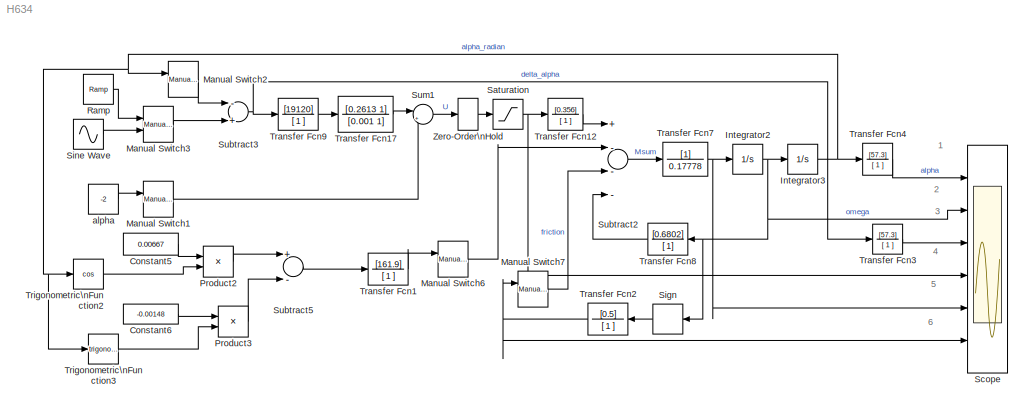
MODEL H634
KIND model
BLOCK [Constant] Constant5
  Value = 0.00667
BLOCK [Constant] Constant6
  Value = -0.00148
BLOCK [Integrator] Integrator2
  Ports = [1, 1]
BLOCK [Integrator] Integrator3
  Ports = [1, 1]
BLOCK [Reference] Manual Switch1  REF=simulink/Signal\nRouting/Manual Switch
  FunctionWithSeparateData = off
  Ports = [2, 1]
  RTWMemSecDataConstants = Inherit from model
  RTWMemSecDataInternal = Inherit from model
  RTWMemSecDataParameters = Inherit from model
  RTWMemSecFuncExecute = Inherit from model
  RTWMemSecFuncInitTerm = Inherit from model
  ShowPortLabels = FromPortIcon
  SourceBlock = simulink/Signal\nRouting/Manual Switch
  SourceType = Manual Switch
  SystemSampleTime = -1
  action = 0
  sw = 1
  varsize = off
BLOCK [Reference] Manual Switch2  REF=simulink/Signal\nRouting/Manual Switch
  FunctionWithSeparateData = off
  Ports = [2, 1]
  RTWMemSecDataConstants = Inherit from model
  RTWMemSecDataInternal = Inherit from model
  RTWMemSecDataParameters = Inherit from model
  RTWMemSecFuncExecute = Inherit from model
  RTWMemSecFuncInitTerm = Inherit from model
  ShowPortLabels = FromPortIcon
  SourceBlock = simulink/Signal\nRouting/Manual Switch
  SourceType = Manual Switch
  SystemSampleTime = -1
  action = 0
  sw = 1
  varsize = off
BLOCK [Reference] Manual Switch3  REF=simulink/Signal\nRouting/Manual Switch
  FunctionWithSeparateData = off
  Ports = [2, 1]
  RTWMemSecDataConstants = Inherit from model
  RTWMemSecDataInternal = Inherit from model
  RTWMemSecDataParameters = Inherit from model
  RTWMemSecFuncExecute = Inherit from model
  RTWMemSecFuncInitTerm = Inherit from model
  ShowPortLabels = FromPortIcon
  SourceBlock = simulink/Signal\nRouting/Manual Switch
  SourceType = Manual Switch
  SystemSampleTime = -1
  action = 0
  sw = 0
  varsize = off
BLOCK [Reference] Manual Switch6  REF=simulink/Signal\nRouting/Manual Switch
  FunctionWithSeparateData = off
  Ports = [2, 1]
  RTWMemSecDataConstants = Inherit from model
  RTWMemSecDataInternal = Inherit from model
  RTWMemSecDataParameters = Inherit from model
  RTWMemSecFuncExecute = Inherit from model
  RTWMemSecFuncInitTerm = Inherit from model
  ShowPortLabels = FromPortIcon
  SourceBlock = simulink/Signal\nRouting/Manual Switch
  SourceType = Manual Switch
  SystemSampleTime = -1
  action = 0
  sw = 1
  varsize = off
BLOCK [Reference] Manual Switch7  REF=simulink/Signal\nRouting/Manual Switch
  FunctionWithSeparateData = off
  Ports = [2, 1]
  RTWMemSecDataConstants = Inherit from model
  RTWMemSecDataInternal = Inherit from model
  RTWMemSecDataParameters = Inherit from model
  RTWMemSecFuncExecute = Inherit from model
  RTWMemSecFuncInitTerm = Inherit from model
  ShowPortLabels = FromPortIcon
  SourceBlock = simulink/Signal\nRouting/Manual Switch
  SourceType = Manual Switch
  SystemSampleTime = -1
  action = 0
  sw = 0
  varsize = off
BLOCK [Product] Product2
  InputSameDT = off
  OutDataTypeMode = Inherit via internal rule
  OutDataTypeStr = Inherit: Inherit via internal rule
  Ports = [2, 1]
  SaturateOnIntegerOverflow = off
BLOCK [Product] Product3
  InputSameDT = off
  OutDataTypeMode = Inherit via internal rule
  OutDataTypeStr = Inherit: Inherit via internal rule
  Ports = [2, 1]
  SaturateOnIntegerOverflow = off
BLOCK [Reference] Ramp  REF=simulink/Sources/Ramp
  FunctionWithSeparateData = off
  Ports = [0, 1]
  RTWMemSecDataConstants = Inherit from model
  RTWMemSecDataInternal = Inherit from model
  RTWMemSecDataParameters = Inherit from model
  RTWMemSecFuncExecute = Inherit from model
  RTWMemSecFuncInitTerm = Inherit from model
  ShowPortLabels = FromPortIcon
  SourceBlock = simulink/Sources/Ramp
  SourceType = Ramp
  SystemSampleTime = -1
  VectorParams1D = on
  X0 = 0
  slope = 0.5
  start = 0
BLOCK [Saturate] Saturation
  LowerLimit = -27
  UpperLimit = 27
BLOCK [Scope] Scope
  DataFormat = StructureWithTime
  Floating = off
  MaxDataPoints = 5000000
  NumInputPorts = 6
  Ports = [6]
  SampleTime = 0
  YMax = 30~1.5~0.6~30~75~0.2
  YMin = -30~-1.5~-0.1~-30~-75~-0.2
  ZoomMode = yonly
BLOCK [Signum] Sign
BLOCK [Sin] Sine Wave
  Amplitude = 0.5
  Bias = 0
  Frequency = 2
  Offset = 0
  Phase = 0
  Ports = [0, 1]
  SampleTime = 0
  Samples = 10
BLOCK [Sum] Subtract2
  InputSameDT = off
  Inputs = +---
  OutDataTypeMode = Inherit via internal rule
  OutDataTypeStr = Inherit: Inherit via internal rule
  Ports = [4, 1]
  SaturateOnIntegerOverflow = off
BLOCK [Sum] Subtract3
  InputSameDT = off
  Inputs = -+
  OutDataTypeMode = Inherit via internal rule
  OutDataTypeStr = Inherit: Inherit via internal rule
  Ports = [2, 1]
  SaturateOnIntegerOverflow = off
BLOCK [Sum] Subtract5
  InputSameDT = off
  Inputs = +-
  OutDataTypeMode = Inherit via internal rule
  OutDataTypeStr = Inherit: Inherit via internal rule
  Ports = [2, 1]
  SaturateOnIntegerOverflow = off
BLOCK [Sum] Sum1
  IconShape = round
  InputSameDT = off
  Inputs = |++
  OutDataTypeMode = Inherit via internal rule
  OutDataTypeStr = Inherit: Inherit via internal rule
  Ports = [2, 1]
  SaturateOnIntegerOverflow = off
BLOCK [TransferFcn] Transfer Fcn1
  Denominator = [ 1 ]
  Numerator = [161.9]
BLOCK [TransferFcn] Transfer Fcn12
  Denominator = [ 1 ]
  Numerator = [0.356]
BLOCK [TransferFcn] Transfer Fcn17
  Denominator = [0.001 1]
  Numerator = [0.2613 1]
BLOCK [TransferFcn] Transfer Fcn2
  Denominator = [ 1 ]
  Numerator = [0.5]
BLOCK [TransferFcn] Transfer Fcn3
  Denominator = [ 1 ]
  Numerator = [57.3]
BLOCK [TransferFcn] Transfer Fcn4
  Denominator = [ 1 ]
  Numerator = [57.3]
BLOCK [TransferFcn] Transfer Fcn7
  Denominator = 0.17778
BLOCK [TransferFcn] Transfer Fcn8
  Denominator = [ 1]
  Numerator = [0.6802]
BLOCK [TransferFcn] Transfer Fcn9
  Denominator = [ 1 ]
  Numerator = [19120]
BLOCK [Trigonometry] Trigonometric\nFunction2
  Operator = cos
  Ports = [1, 1]
BLOCK [Trigonometry] Trigonometric\nFunction3
  Ports = [1, 1]
BLOCK [ZeroOrderHold] Zero-Order\nHold
  SampleTime = 1/19531
BLOCK [Constant] alpha
  Value = -2
ANNOTATION (root): 1
ANNOTATION (root): 2
ANNOTATION (root): 3
ANNOTATION (root): 4
ANNOTATION (root): 5
ANNOTATION (root): 6
LINE Constant5:1 -> Product2:1
LINE Constant6:1 -> Product3:1
NET Integrator2:1 -> Integrator3:1, Scope:2, Sign:1, Transfer Fcn8:1
NET Integrator3:1 -> Manual Switch2:1, Transfer Fcn4:1, Trigonometric\nFunction2:1, Trigonometric\nFunction3:1
LINE Manual Switch1:1 -> Sum1:2
LINE Manual Switch2:1 -> Subtract3:1
LINE Manual Switch3:1 -> Subtract3:2
LINE Manual Switch6:1 -> Subtract2:2
LINE Manual Switch7:1 -> Subtract2:3
LINE Product2:1 -> Subtract5:1
LINE Product3:1 -> Subtract5:2
LINE Ramp:1 -> Manual Switch3:1
NET Saturation:1 -> Scope:4, Transfer Fcn12:1
LINE Sign:1 -> Transfer Fcn2:1
LINE Sine Wave:1 -> Manual Switch3:2
LINE Subtract2:1 -> Transfer Fcn7:1
NET Subtract3:1 -> Transfer Fcn3:1, Transfer Fcn9:1
LINE Subtract5:1 -> Transfer Fcn1:1
LINE Sum1:1 -> Zero-Order\nHold:1
LINE Transfer Fcn12:1 -> Subtract2:1
LINE Transfer Fcn17:1 -> Sum1:1
LINE Transfer Fcn1:1 -> Manual Switch6:1
NET Transfer Fcn2:1 -> Manual Switch7:1, Scope:6
LINE Transfer Fcn3:1 -> Scope:3
LINE Transfer Fcn4:1 -> Scope:1
NET Transfer Fcn7:1 -> Integrator2:1, Scope:5
LINE Transfer Fcn8:1 -> Subtract2:4
LINE Transfer Fcn9:1 -> Transfer Fcn17:1
LINE Trigonometric\nFunction2:1 -> Product2:2
LINE Trigonometric\nFunction3:1 -> Product3:2
LINE Zero-Order\nHold:1 -> Saturation:1
LINE alpha:1 -> Manual Switch1:1
note: NET lines group one-source signal fan-out (src -> all destinations, sorted); 1:1 wires keep LINE
